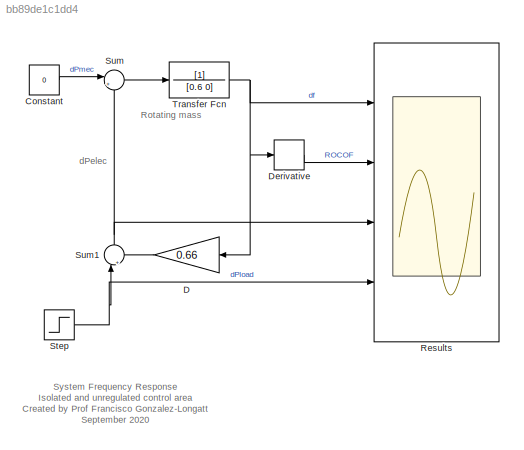
MODEL slx_bb89de1c1dd4
KIND model
CONFIG AbsTol = auto
CONFIG EnableMultiTasking = off
CONFIG FixedStep = auto
CONFIG MaxStep = auto
CONFIG MinStep = auto
CONFIG RelTol = 1e-3
CONFIG SampleTimeConstraint = Unconstrained
CONFIG Solver = VariableStepAuto
CONFIG SolverName = VariableStepAuto
CONFIG StartTime = 0.0
CONFIG StopTime = 100
BLOCK [Constant] Constant
  Value = 0
BLOCK [Gain] D
  Gain = 0.66
BLOCK [Derivative] Derivative
BLOCK [Scope] Results
  Floating = off
  NumInputPorts = 4
  Ports = [4]
  ScopeSpecificationString = Simulink.scopes.TimeScopeBlockCfg('CurrentConfiguration', extmgr.ConfigurationSet(extmgr.Configuration('Core','General UI',true),extmgr.Configuration('Core','Source UI',true),extmgr.Configuration('Sources','WiredSimulink',true),extmgr.Configuration('Visuals','Time Domain',true,'SerializedDisplays',{struct('MinYLimReal','-0.08523','MaxYLimReal','0.00947','YLabelReal','','MinYLimMag','0.00000','MaxY...<+3397ch>
BLOCK [Step] Step
  After = -0.05
  SampleTime = 0
BLOCK [Sum] Sum
  Inputs = |++
  Ports = [2, 1]
BLOCK [Sum] Sum1
  Inputs = |+-
  NameLocation = right
  Ports = [2, 1]
BLOCK [TransferFcn] Transfer Fcn
  Denominator = [0.6 0]
ANNOTATION (root): Rotating mass
ANNOTATION (root): System Frequency Response Isolated and unregulated control area Created by Prof Francisco Gonzalez-Longatt September 2020
ANNOTATION (root): dPelec
LINE Constant:1 -> Sum:1
LINE D:1 -> Sum1:2
LINE Derivative:1 -> Results:2
NET Step:1 -> Results:4, Sum1:1
NET Sum1:1 -> Results:3, Sum:2
LINE Sum:1 -> Transfer Fcn:1
NET Transfer Fcn:1 -> D:1, Derivative:1, Results:1
note: NET lines group one-source signal fan-out (src -> all destinations, sorted); 1:1 wires keep LINE
